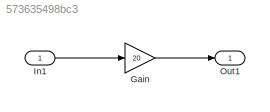
MODEL slx_573635498bc3
KIND model
BLOCK [Gain] Gain
  Gain = 20
  OutDataTypeStr = Inherit: Inherit via internal rule
  ParamDataTypeStr = Inherit: Inherit via internal rule
  SaturateOnIntegerOverflow = off
BLOCK [Inport] In1
  IconDisplay = Port number
BLOCK [Outport] Out1
  IconDisplay = Port number
LINE Gain:1 -> Out1:1
LINE In1:1 -> Gain:1
